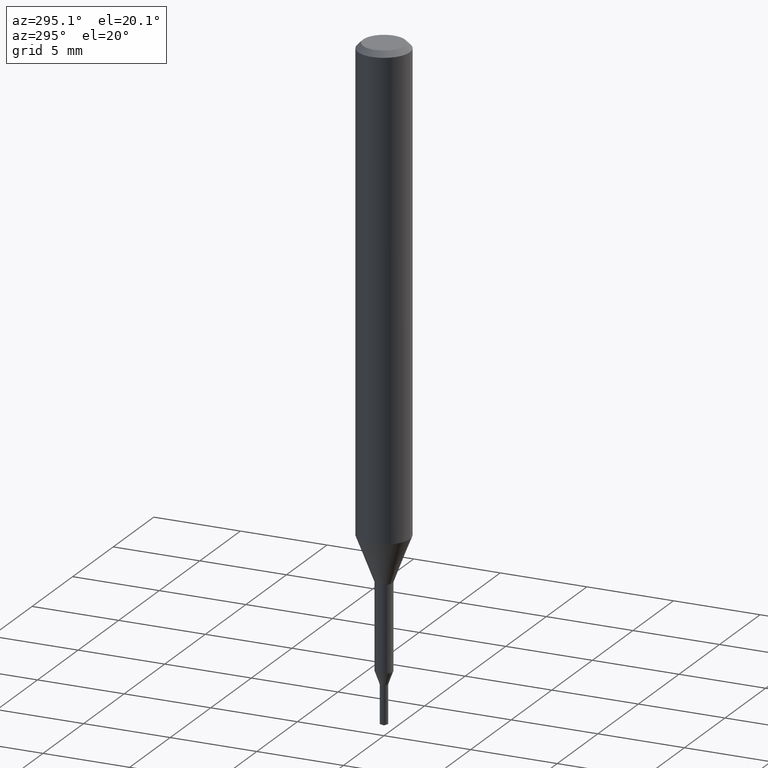
[diagram: clean part render]
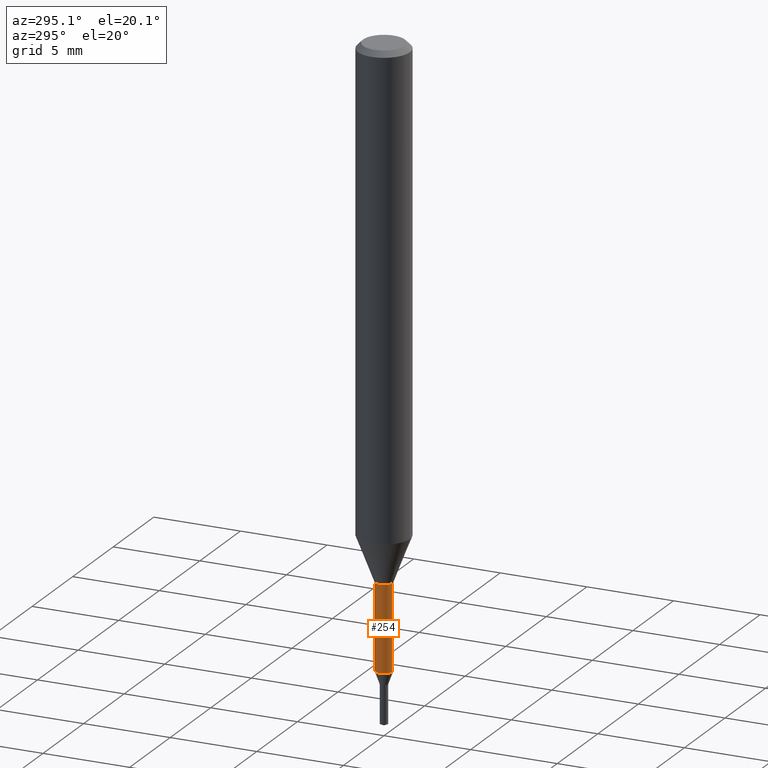
[diagram: same view with one face highlighted and labeled with its STEP entity id]
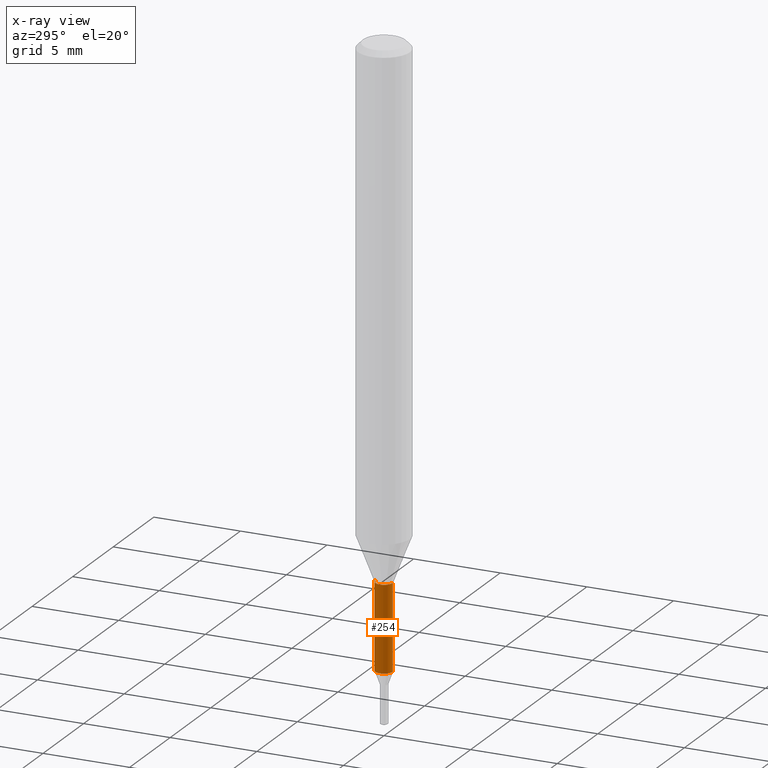
[diagram: x-ray of the same camera — body ghosted, the highlighted face saturated]
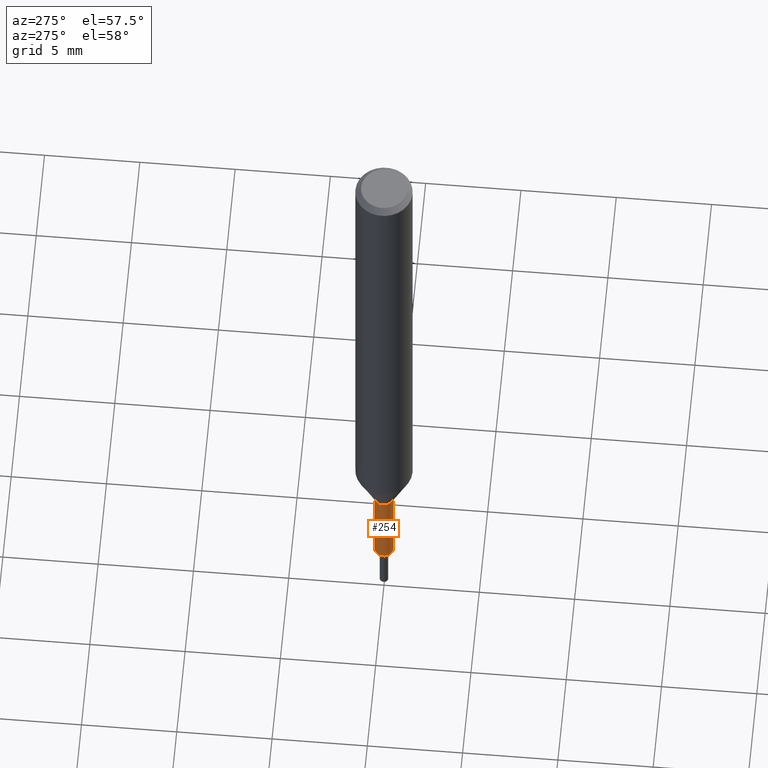
[diagram: same view with one face highlighted and labeled with its STEP entity id]
A machine part, auxiliary view. The second image highlights one B-rep face of the part: STEP entity #254.
The next image is the same camera in x-ray: the body ghosted, the highlighted face saturated — about 0% of this face is hidden behind the body in this view.
A second angle (auxiliary view) of the same face is appended — the face is thin or edge-on in the first view.
In plain terms, the highlighted cylindrical surface (edge-blend (fillet) strip) has radius 0.5 mm, axis along (-0, -0, 1).
Its self-contained STEP definition (entity closure, byte-faithful):
#140=VERTEX_POINT('',#321);
#146=EDGE_CURVE('',#194,#140,#327,.T.);
#180=EDGE_CURVE('',#140,#246,#366,.T.);
#182=EDGE_CURVE('',#246,#238,#368,.T.);
#194=VERTEX_POINT('',#381);
#220=EDGE_CURVE('',#194,#238,#412,.T.);
#238=VERTEX_POINT('',#432);
#246=VERTEX_POINT('',#441);
#254=ADVANCED_FACE('',(#449),#450,.T.);
#321=CARTESIAN_POINT('',(6.12241946593498E-017,-0.49995,-30.0));
#327=LINE('',#527,#528);
#366=CIRCLE('',#580,0.49995);
#368=LINE('',#583,#584);
#381=CARTESIAN_POINT('',(6.12241946593498E-017,-0.49995,-34.944));
#412=CIRCLE('',#634,0.49995);
#432=CARTESIAN_POINT('',(0.0,0.49995,-34.944));
#441=CARTESIAN_POINT('',(0.0,0.49995,-30.0));
#449=FACE_OUTER_BOUND('',#685,.T.);
#450=CYLINDRICAL_SURFACE('',#686,0.49995);
#527=CARTESIAN_POINT('',(6.12241946593498E-017,-0.49995,-32.472));
#528=VECTOR('',#750,1.0);
#580=AXIS2_PLACEMENT_3D('',#802,#803,#804);
#583=CARTESIAN_POINT('',(-6.12241946593498E-017,0.49995,-32.472));
#584=VECTOR('',#805,1.0);
#634=AXIS2_PLACEMENT_3D('',#869,#870,#871);
#685=EDGE_LOOP('',(#908,#909,#910,#911));
#686=AXIS2_PLACEMENT_3D('',#912,#913,#914);
#750=DIRECTION('',(-0.0,-0.0,1.0));
#802=CARTESIAN_POINT('',(0.0,0.0,-30.0));
#803=DIRECTION('',(0.0,0.0,-1.0));
#804=DIRECTION('',(0.0,1.0,0.0));
#805=DIRECTION('',(0.0,0.0,-1.0));
#869=CARTESIAN_POINT('',(0.0,0.0,-34.944));
#870=DIRECTION('',(0.0,0.0,-1.0));
#871=DIRECTION('',(0.0,1.0,0.0));
#908=ORIENTED_EDGE('',*,*,#182,.T.);
#909=ORIENTED_EDGE('',*,*,#220,.F.);
#910=ORIENTED_EDGE('',*,*,#146,.T.);
#911=ORIENTED_EDGE('',*,*,#180,.T.);
#912=CARTESIAN_POINT('',(0.0,0.0,-32.472));
#913=DIRECTION('',(-0.0,-0.0,1.0));
#914=DIRECTION('',(0.0,1.0,0.0));